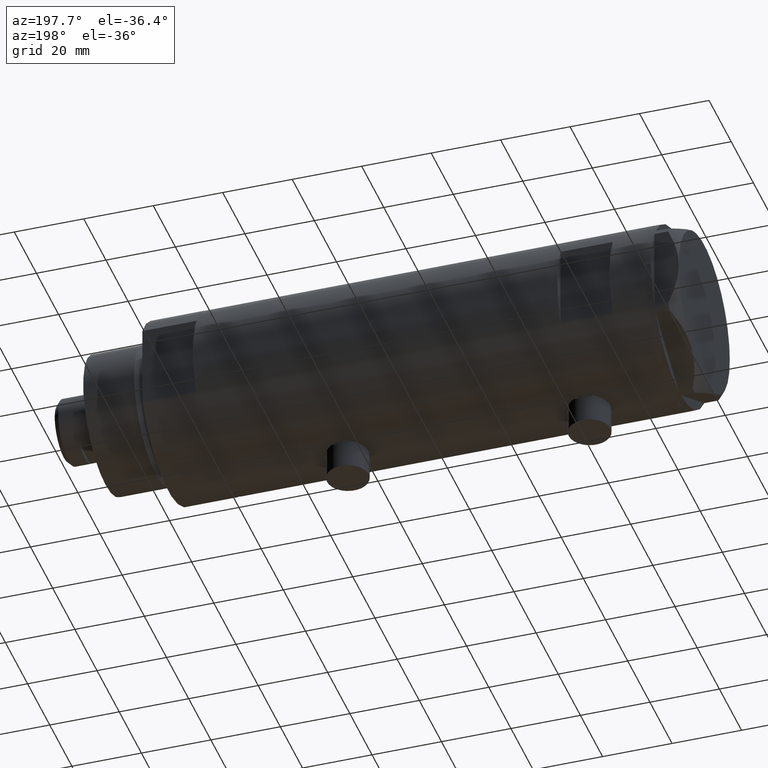
[diagram: clean part render]
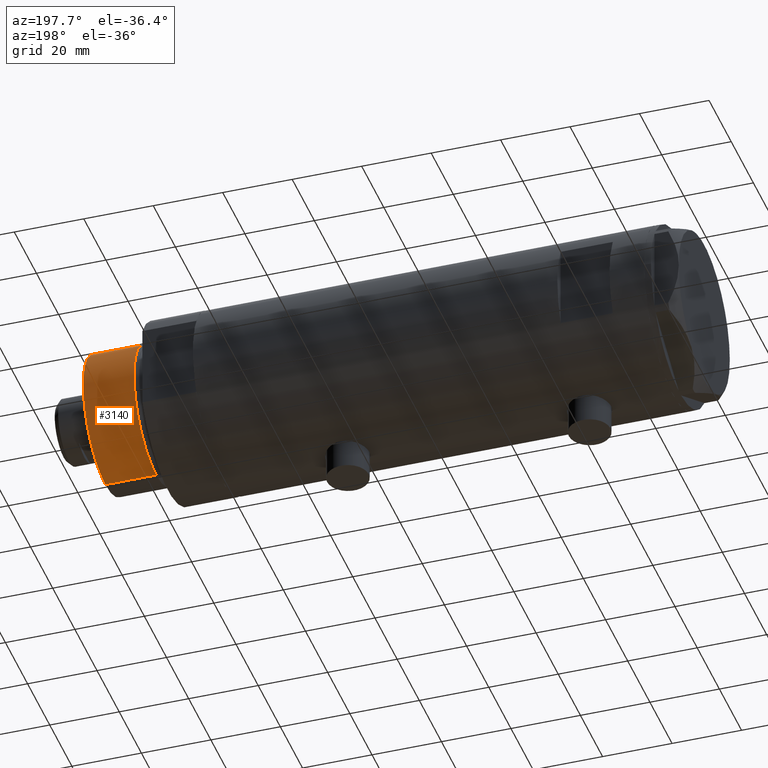
[diagram: same view with one face highlighted and labeled with its STEP entity id]
A machine part, auxiliary view. The second image highlights one B-rep face of the part: STEP entity #3140.
In plain terms, the highlighted cylindrical surface (partial cylindrical patch) has radius 20 mm, axis along (-1, -0, 0).
Its self-contained STEP definition (entity closure, byte-faithful):
#96 = DIRECTION ( 'NONE',  ( -0.000000000000000000, -0.000000000000000000, -1.000000000000000000 ) ) ;
#213 = CARTESIAN_POINT ( 'NONE',  ( -19.99999999999999645, 0.000000000000000000, 33.50000000000000000 ) ) ;
#567 = DIRECTION ( 'NONE',  ( -0.000000000000000000, -0.000000000000000000, -1.000000000000000000 ) ) ;
#597 = DIRECTION ( 'NONE',  ( -1.000000000000000000, 0.000000000000000000, 0.000000000000000000 ) ) ;
#945 = CIRCLE ( 'NONE', #1638, 19.99999999999999645 ) ;
#1168 = VERTEX_POINT ( 'NONE', #2622 ) ;
#1215 = ORIENTED_EDGE ( 'NONE', *, *, #1606, .F. ) ;
#1228 = CARTESIAN_POINT ( 'NONE',  ( -19.99999999999999645, 0.000000000000000000, 33.50000000000000000 ) ) ;
#1347 = VECTOR ( 'NONE', #96, 1000.000000000000000 ) ;
#1541 = EDGE_CURVE ( 'NONE', #4097, #1168, #4449, .T. ) ;
#1606 = EDGE_CURVE ( 'NONE', #4097, #1764, #945, .T. ) ;
#1638 = AXIS2_PLACEMENT_3D ( 'NONE', #4054, #3253, #3956 ) ;
#1764 = VERTEX_POINT ( 'NONE', #213 ) ;
#1878 = CARTESIAN_POINT ( 'NONE',  ( 0.000000000000000000, 0.000000000000000000, 18.87384048104053846 ) ) ;
#1981 = VERTEX_POINT ( 'NONE', #2037 ) ;
#2035 = CARTESIAN_POINT ( 'NONE',  ( 0.000000000000000000, 0.000000000000000000, 33.50000000000000000 ) ) ;
#2037 = CARTESIAN_POINT ( 'NONE',  ( -19.99999999999999645, 0.000000000000000000, 18.87384048104053846 ) ) ;
#2455 = EDGE_CURVE ( 'NONE', #1764, #1981, #3224, .T. ) ;
#2533 = AXIS2_PLACEMENT_3D ( 'NONE', #1878, #4779, #3312 ) ;
#2600 = VECTOR ( 'NONE', #3731, 1000.000000000000000 ) ;
#2622 = CARTESIAN_POINT ( 'NONE',  ( 19.99999999999999645, 2.449293598294706119E-15, 18.87384048104053846 ) ) ;
#2842 = FACE_OUTER_BOUND ( 'NONE', #4076, .T. ) ;
#3132 = ORIENTED_EDGE ( 'NONE', *, *, #1541, .T. ) ;
#3140 = ADVANCED_FACE ( 'NONE', ( #2842 ), #4338, .T. ) ;
#3224 = LINE ( 'NONE', #1228, #1347 ) ;
#3253 = DIRECTION ( 'NONE',  ( 0.000000000000000000, 0.000000000000000000, 1.000000000000000000 ) ) ;
#3312 = DIRECTION ( 'NONE',  ( 1.000000000000000000, 0.000000000000000000, 0.000000000000000000 ) ) ;
#3731 = DIRECTION ( 'NONE',  ( -0.000000000000000000, -0.000000000000000000, -1.000000000000000000 ) ) ;
#3956 = DIRECTION ( 'NONE',  ( 1.000000000000000000, 0.000000000000000000, 0.000000000000000000 ) ) ;
#4054 = CARTESIAN_POINT ( 'NONE',  ( 0.000000000000000000, 0.000000000000000000, 33.50000000000000000 ) ) ;
#4076 = EDGE_LOOP ( 'NONE', ( #1215, #3132, #4457, #4599 ) ) ;
#4077 = CARTESIAN_POINT ( 'NONE',  ( 19.99999999999999645, 2.449293598294706119E-15, 33.50000000000000000 ) ) ;
#4079 = AXIS2_PLACEMENT_3D ( 'NONE', #2035, #567, #597 ) ;
#4097 = VERTEX_POINT ( 'NONE', #4320 ) ;
#4320 = CARTESIAN_POINT ( 'NONE',  ( 19.99999999999999645, 2.449293598294706119E-15, 33.50000000000000000 ) ) ;
#4338 = CYLINDRICAL_SURFACE ( 'NONE', #4079, 19.99999999999999645 ) ;
#4449 = LINE ( 'NONE', #4077, #2600 ) ;
#4457 = ORIENTED_EDGE ( 'NONE', *, *, #4796, .T. ) ;
#4599 = ORIENTED_EDGE ( 'NONE', *, *, #2455, .F. ) ;
#4638 = CIRCLE ( 'NONE', #2533, 19.99999999999999645 ) ;
#4779 = DIRECTION ( 'NONE',  ( -0.000000000000000000, -0.000000000000000000, 1.000000000000000000 ) ) ;
#4796 = EDGE_CURVE ( 'NONE', #1168, #1981, #4638, .T. ) ;